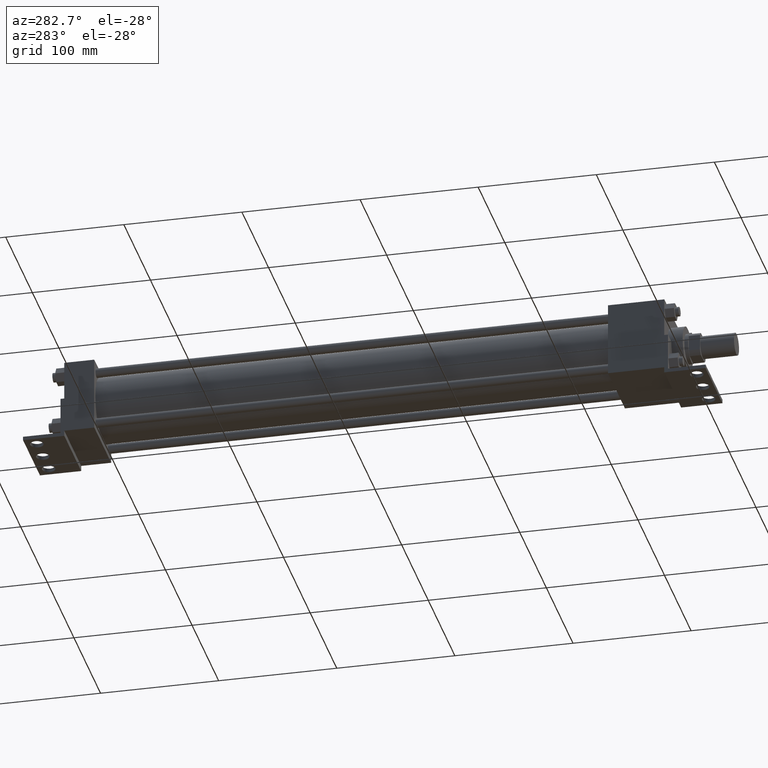
[diagram: clean part render]
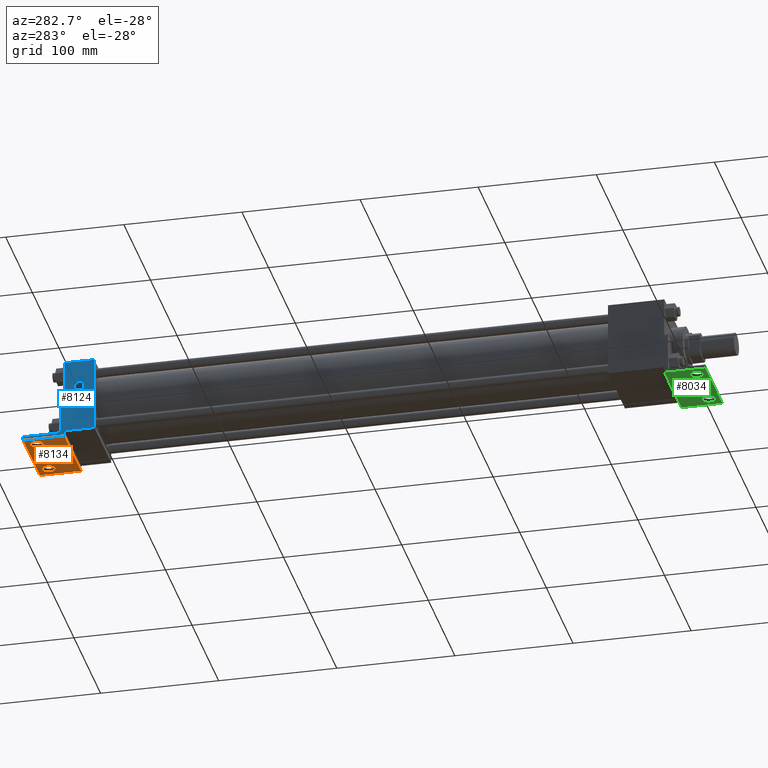
[diagram: same view with three faces highlighted in distinct colors, each labeled with its STEP entity id]
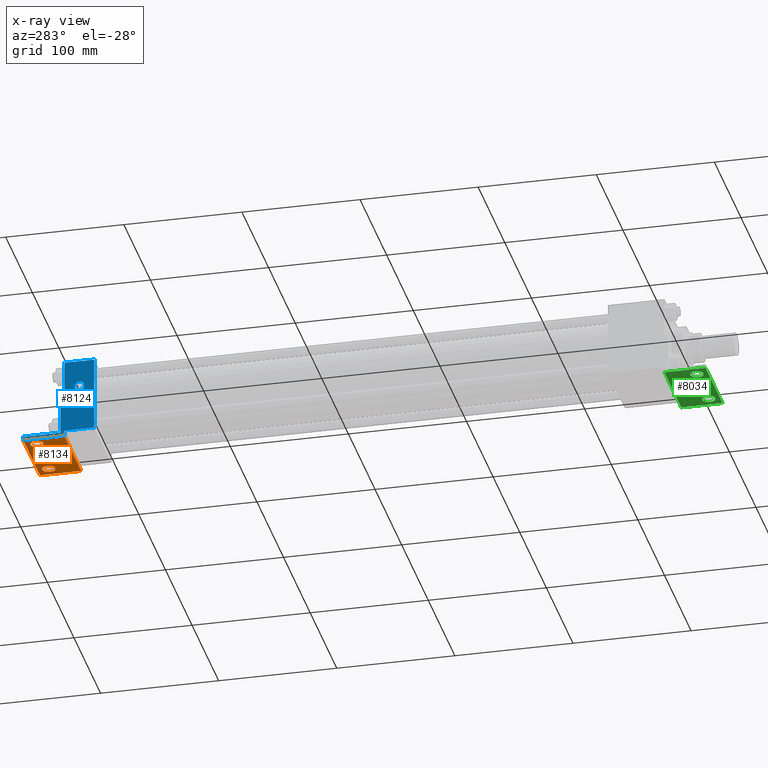
[diagram: x-ray of the same camera — body ghosted, the three highlighted faces saturated]
A machine part, auxiliary view with three faces highlighted in distinct colors.
The next image is the same camera in x-ray (body ghosted, the three faces saturated) — at least one of them is partly hidden behind the body in this view.
Their STEP definitions:

[orange] entity #8134 — the highlighted planar face has unit normal (0, 0, 1).
#3711=VERTEX_POINT('',#3712);
#3712=CARTESIAN_POINT('',(3.175000000E+001,5.334000000E+002,-3.651250000E+001));
#3713=EDGE_CURVE('',#3718,#3711,#3714,.T.);
#3714=LINE('',#3715,#3716);
#3715=CARTESIAN_POINT('',(3.175000000E+001,5.683250000E+002,-3.651250000E+001));
#3716=VECTOR('',#3717,1.0E+000);
#3717=DIRECTION('',(0.0E+000,-1.0E+000,0.0E+000));
#3718=VERTEX_POINT('',#3719);
#3719=CARTESIAN_POINT('',(3.175000000E+001,5.683250000E+002,-3.651250000E+001));
#3827=VERTEX_POINT('',#3828);
#3828=CARTESIAN_POINT('',(-3.175000000E+001,5.683250000E+002,-3.651250000E+001));
#3829=EDGE_CURVE('',#3827,#3834,#3830,.T.);
#3830=LINE('',#3831,#3832);
#3831=CARTESIAN_POINT('',(-3.175000000E+001,5.683250000E+002,-3.651250000E+001));
#3832=VECTOR('',#3833,1.0E+000);
#3833=DIRECTION('',(0.0E+000,-1.0E+000,0.0E+000));
#3834=VERTEX_POINT('',#3835);
#3835=CARTESIAN_POINT('',(-3.175000000E+001,5.334000000E+002,-3.651250000E+001));
#4338=EDGE_CURVE('',#3827,#3718,#4339,.T.);
#4339=LINE('',#4340,#4341);
#4340=CARTESIAN_POINT('',(-3.175000000E+001,5.683250000E+002,-3.651250000E+001));
#4341=VECTOR('',#4342,1.0E+000);
#4342=DIRECTION('',(1.0E+000,0.0E+000,0.0E+000));
#4353=FACE_OUTER_BOUND('',#4357,.T.);
#4354=FACE_BOUND('',#4358,.T.);
#4355=FACE_BOUND('',#4359,.T.);
#4356=FACE_BOUND('',#4360,.T.);
#4357=EDGE_LOOP('',(#4361));
#4358=EDGE_LOOP('',(#4370));
#4359=EDGE_LOOP('',(#4379));
#4360=EDGE_LOOP('',(#4388,#4389,#4390,#4391));
#4361=ORIENTED_EDGE('',*,*,#4362,.F.);
#4362=EDGE_CURVE('',#4368,#4368,#4363,.T.);
#4363=CIRCLE('',#4364,5.556250000E+000);
#4364=AXIS2_PLACEMENT_3D('',#4365,#4366,#4367);
#4365=CARTESIAN_POINT('',(0.000000000E+000,5.588000000E+002,-3.651250000E+001));
#4366=DIRECTION('',(0.0E+000,0.0E+000,-1.0E+000));
#4367=DIRECTION('',(1.0E+000,0.0E+000,0.0E+000));
#4368=VERTEX_POINT('',#4369);
#4369=CARTESIAN_POINT('',(-5.556250000E+000,5.588000000E+002,-3.651250000E+001));
#4370=ORIENTED_EDGE('',*,*,#4371,.F.);
#4371=EDGE_CURVE('',#4377,#4377,#4372,.T.);
#4372=CIRCLE('',#4373,5.556250000E+000);
#4373=AXIS2_PLACEMENT_3D('',#4374,#4375,#4376);
#4374=CARTESIAN_POINT('',(-2.222500000E+001,5.588000000E+002,-3.651250000E+001));
#4375=DIRECTION('',(0.0E+000,0.0E+000,-1.0E+000));
#4376=DIRECTION('',(1.0E+000,0.0E+000,0.0E+000));
#4377=VERTEX_POINT('',#4378);
#4378=CARTESIAN_POINT('',(-1.666875000E+001,5.588000000E+002,-3.651250000E+001));
#4379=ORIENTED_EDGE('',*,*,#4380,.F.);
#4380=EDGE_CURVE('',#4386,#4386,#4381,.T.);
#4381=CIRCLE('',#4382,5.556250000E+000);
#4382=AXIS2_PLACEMENT_3D('',#4383,#4384,#4385);
#4383=CARTESIAN_POINT('',(2.222500000E+001,5.588000000E+002,-3.651250000E+001));
#4384=DIRECTION('',(0.0E+000,0.0E+000,-1.0E+000));
#4385=DIRECTION('',(1.0E+000,0.0E+000,0.0E+000));
#4386=VERTEX_POINT('',#4387);
#4387=CARTESIAN_POINT('',(2.778125000E+001,5.588000000E+002,-3.651250000E+001));
#4388=ORIENTED_EDGE('',*,*,#3713,.T.);
#4389=ORIENTED_EDGE('',*,*,#4392,.F.);
#4390=ORIENTED_EDGE('',*,*,#3829,.F.);
#4391=ORIENTED_EDGE('',*,*,#4338,.T.);
#4392=EDGE_CURVE('',#3834,#3711,#4393,.T.);
#4393=LINE('',#4394,#4395);
#4394=CARTESIAN_POINT('',(-3.175000000E+001,5.334000000E+002,-3.651250000E+001));
#4395=VECTOR('',#4396,1.0E+000);
#4396=DIRECTION('',(1.0E+000,0.0E+000,0.0E+000));
#4397=PLANE('',#4398);
#4398=AXIS2_PLACEMENT_3D('',#4399,#4400,#4401);
#4399=CARTESIAN_POINT('',(-3.175000000E+001,5.683250000E+002,-3.651250000E+001));
#4400=DIRECTION('',(0.0E+000,0.0E+000,1.0E+000));
#4401=DIRECTION('',(-1.0E+000,0.0E+000,0.0E+000));
#8134=ADVANCED_FACE('',(#4353,#4354,#4355,#4356),#4397,.F.);

[blue] entity #8124 — the highlighted planar face has unit normal (-1, 0, 0).
#3416=VERTEX_POINT('',#3418);
#3418=CARTESIAN_POINT('',(-3.175000000E+001,5.080000000E+002,-3.175000000E+001));
#3432=VERTEX_POINT('',#3433);
#3433=CARTESIAN_POINT('',(-3.175000000E+001,5.080000000E+002,3.175000000E+001));
#3434=EDGE_CURVE('',#3432,#3416,#3435,.T.);
#3435=LINE('',#3436,#3437);
#3436=CARTESIAN_POINT('',(-3.175000000E+001,5.080000000E+002,3.175000000E+001));
#3437=VECTOR('',#3438,1.0E+000);
#3438=DIRECTION('',(0.0E+000,0.0E+000,-1.0E+000));
#3609=VERTEX_POINT('',#3611);
#3611=CARTESIAN_POINT('',(-3.175000000E+001,5.334000000E+002,-1.587500000E+000));
#3613=EDGE_CURVE('',#3618,#3609,#3614,.T.);
#3614=LINE('',#3615,#3616);
#3615=CARTESIAN_POINT('',(-3.175000000E+001,5.334000000E+002,3.175000000E+001));
#3616=VECTOR('',#3617,1.0E+000);
#3617=DIRECTION('',(0.0E+000,0.0E+000,-1.0E+000));
#3618=VERTEX_POINT('',#3619);
#3619=CARTESIAN_POINT('',(-3.175000000E+001,5.334000000E+002,3.175000000E+001));
#3661=EDGE_CURVE('',#3666,#3416,#3662,.T.);
#3662=LINE('',#3663,#3664);
#3663=CARTESIAN_POINT('',(-3.175000000E+001,5.334000000E+002,-3.175000000E+001));
#3664=VECTOR('',#3665,1.0E+000);
#3665=DIRECTION('',(0.0E+000,-1.0E+000,0.0E+000));
#3666=VERTEX_POINT('',#3667);
#3667=CARTESIAN_POINT('',(-3.175000000E+001,5.334000000E+002,-3.175000000E+001));
#3768=EDGE_CURVE('',#3618,#3432,#3769,.T.);
#3769=LINE('',#3770,#3771);
#3770=CARTESIAN_POINT('',(-3.175000000E+001,5.334000000E+002,3.175000000E+001));
#3771=VECTOR('',#3772,1.0E+000);
#3772=DIRECTION('',(0.0E+000,-1.0E+000,0.0E+000));
#3778=FACE_OUTER_BOUND('',#3780,.T.);
#3779=FACE_BOUND('',#3781,.T.);
#3780=EDGE_LOOP('',(#3782));
#3781=EDGE_LOOP('',(#3791,#3792,#3793,#3794,#3795,#3796,#3797,#3798,#3799,
   #3800));
#3782=ORIENTED_EDGE('',*,*,#3783,.T.);
#3783=EDGE_CURVE('',#3789,#3789,#3784,.T.);
#3784=CIRCLE('',#3785,3.968750000E+000);
#3785=AXIS2_PLACEMENT_3D('',#3786,#3787,#3788);
#3786=CARTESIAN_POINT('',(-3.175000000E+001,5.207000000E+002,8.732520000E+000));
#3787=DIRECTION('',(1.0E+000,0.0E+000,0.0E+000));
#3788=DIRECTION('',(0.0E+000,0.0E+000,1.0E+000));
#3789=VERTEX_POINT('',#3790);
#3790=CARTESIAN_POINT('',(-3.175000000E+001,5.207000000E+002,1.270127000E+001));
#3791=ORIENTED_EDGE('',*,*,#3613,.T.);
#3792=ORIENTED_EDGE('',*,*,#3801,.T.);
#3793=ORIENTED_EDGE('',*,*,#3808,.T.);
#3794=ORIENTED_EDGE('',*,*,#3815,.T.);
#3795=ORIENTED_EDGE('',*,*,#3822,.T.);
#3796=ORIENTED_EDGE('',*,*,#3829,.T.);
#3797=ORIENTED_EDGE('',*,*,#3836,.T.);
#3798=ORIENTED_EDGE('',*,*,#3661,.T.);
#3799=ORIENTED_EDGE('',*,*,#3434,.F.);
#3800=ORIENTED_EDGE('',*,*,#3768,.F.);
#3801=EDGE_CURVE('',#3609,#3806,#3802,.T.);
#3802=LINE('',#3803,#3804);
#3803=CARTESIAN_POINT('',(-3.175000000E+001,5.334000000E+002,-1.587500000E+000));
#3804=VECTOR('',#3805,1.0E+000);
#3805=DIRECTION('',(0.0E+000,1.0E+000,0.0E+000));
#3806=VERTEX_POINT('',#3807);
#3807=CARTESIAN_POINT('',(-3.175000000E+001,5.365750000E+002,-1.587500000E+000));
#3808=EDGE_CURVE('',#3806,#3813,#3809,.T.);
#3809=LINE('',#3810,#3811);
#3810=CARTESIAN_POINT('',(-3.175000000E+001,5.365750000E+002,-1.587500000E+000));
#3811=VECTOR('',#3812,1.0E+000);
#3812=DIRECTION('',(0.0E+000,0.0E+000,-1.0E+000));
#3813=VERTEX_POINT('',#3814);
#3814=CARTESIAN_POINT('',(-3.175000000E+001,5.365750000E+002,-3.333750000E+001));
#3815=EDGE_CURVE('',#3813,#3820,#3816,.T.);
#3816=LINE('',#3817,#3818);
#3817=CARTESIAN_POINT('',(-3.175000000E+001,5.365750000E+002,-3.333750000E+001));
#3818=VECTOR('',#3819,1.0E+000);
#3819=DIRECTION('',(0.0E+000,1.0E+000,0.0E+000));
#3820=VERTEX_POINT('',#3821);
#3821=CARTESIAN_POINT('',(-3.175000000E+001,5.683250000E+002,-3.333750000E+001));
#3822=EDGE_CURVE('',#3820,#3827,#3823,.T.);
#3823=LINE('',#3824,#3825);
#3824=CARTESIAN_POINT('',(-3.175000000E+001,5.683250000E+002,-3.651250000E+001));
#3825=VECTOR('',#3826,1.0E+000);
#3826=DIRECTION('',(0.0E+000,0.0E+000,-1.0E+000));
#3827=VERTEX_POINT('',#3828);
#3828=CARTESIAN_POINT('',(-3.175000000E+001,5.683250000E+002,-3.651250000E+001));
#3829=EDGE_CURVE('',#3827,#3834,#3830,.T.);
#3830=LINE('',#3831,#3832);
#3831=CARTESIAN_POINT('',(-3.175000000E+001,5.683250000E+002,-3.651250000E+001));
#3832=VECTOR('',#3833,1.0E+000);
#3833=DIRECTION('',(0.0E+000,-1.0E+000,0.0E+000));
#3834=VERTEX_POINT('',#3835);
#3835=CARTESIAN_POINT('',(-3.175000000E+001,5.334000000E+002,-3.651250000E+001));
#3836=EDGE_CURVE('',#3834,#3666,#3837,.T.);
#3837=LINE('',#3838,#3839);
#3838=CARTESIAN_POINT('',(-3.175000000E+001,5.334000000E+002,-3.651250000E+001));
#3839=VECTOR('',#3840,1.0E+000);
#3840=DIRECTION('',(0.0E+000,0.0E+000,1.0E+000));
#3841=PLANE('',#3842);
#3842=AXIS2_PLACEMENT_3D('',#3843,#3844,#3845);
#3843=CARTESIAN_POINT('',(-3.175000000E+001,5.334000000E+002,3.175000000E+001));
#3844=DIRECTION('',(-1.0E+000,0.0E+000,0.0E+000));
#3845=DIRECTION('',(0.0E+000,0.0E+000,1.0E+000));
#8124=ADVANCED_FACE('',(#3778,#3779),#3841,.T.);

[green] entity #8034 — the highlighted planar face has unit normal (0, 0, 1).
#648=VERTEX_POINT('',#649);
#649=CARTESIAN_POINT('',(3.175000000E+001,-9.525000000E+000,-3.651250000E+001));
#650=EDGE_CURVE('',#648,#655,#651,.T.);
#651=LINE('',#652,#653);
#652=CARTESIAN_POINT('',(3.175000000E+001,-9.525000000E+000,-3.651250000E+001));
#653=VECTOR('',#654,1.0E+000);
#654=DIRECTION('',(0.0E+000,1.0E+000,0.0E+000));
#655=VERTEX_POINT('',#656);
#656=CARTESIAN_POINT('',(3.175000000E+001,2.540000000E+001,-3.651250000E+001));
#741=VERTEX_POINT('',#742);
#742=CARTESIAN_POINT('',(-3.175000000E+001,2.540000000E+001,-3.651250000E+001));
#743=EDGE_CURVE('',#748,#741,#744,.T.);
#744=LINE('',#745,#746);
#745=CARTESIAN_POINT('',(-3.175000000E+001,-9.525000000E+000,-3.651250000E+001));
#746=VECTOR('',#747,1.0E+000);
#747=DIRECTION('',(0.0E+000,1.0E+000,0.0E+000));
#748=VERTEX_POINT('',#749);
#749=CARTESIAN_POINT('',(-3.175000000E+001,-9.525000000E+000,-3.651250000E+001));
#1035=EDGE_CURVE('',#655,#741,#1036,.T.);
#1036=LINE('',#1037,#1038);
#1037=CARTESIAN_POINT('',(3.175000000E+001,2.540000000E+001,-3.651250000E+001));
#1038=VECTOR('',#1039,1.0E+000);
#1039=DIRECTION('',(-1.0E+000,0.0E+000,0.0E+000));
#1074=EDGE_CURVE('',#648,#748,#1075,.T.);
#1075=LINE('',#1076,#1077);
#1076=CARTESIAN_POINT('',(3.175000000E+001,-9.525000000E+000,-3.651250000E+001));
#1077=VECTOR('',#1078,1.0E+000);
#1078=DIRECTION('',(-1.0E+000,0.0E+000,0.0E+000));
#1089=FACE_OUTER_BOUND('',#1093,.T.);
#1090=FACE_BOUND('',#1094,.T.);
#1091=FACE_BOUND('',#1095,.T.);
#1092=FACE_BOUND('',#1096,.T.);
#1093=EDGE_LOOP('',(#1097));
#1094=EDGE_LOOP('',(#1106));
#1095=EDGE_LOOP('',(#1115));
#1096=EDGE_LOOP('',(#1124,#1125,#1126,#1127));
#1097=ORIENTED_EDGE('',*,*,#1098,.F.);
#1098=EDGE_CURVE('',#1104,#1104,#1099,.T.);
#1099=CIRCLE('',#1100,5.556250000E+000);
#1100=AXIS2_PLACEMENT_3D('',#1101,#1102,#1103);
#1101=CARTESIAN_POINT('',(2.222500000E+001,0.000000000E+000,-3.651250000E+001));
#1102=DIRECTION('',(0.0E+000,0.0E+000,-1.0E+000));
#1103=DIRECTION('',(-1.0E+000,0.0E+000,0.0E+000));
#1104=VERTEX_POINT('',#1105);
#1105=CARTESIAN_POINT('',(1.666875000E+001,0.000000000E+000,-3.651250000E+001));
#1106=ORIENTED_EDGE('',*,*,#1107,.F.);
#1107=EDGE_CURVE('',#1113,#1113,#1108,.T.);
#1108=CIRCLE('',#1109,5.556250000E+000);
#1109=AXIS2_PLACEMENT_3D('',#1110,#1111,#1112);
#1110=CARTESIAN_POINT('',(-2.222500000E+001,0.000000000E+000,-3.651250000E+001));
#1111=DIRECTION('',(0.0E+000,0.0E+000,-1.0E+000));
#1112=DIRECTION('',(-1.0E+000,0.0E+000,0.0E+000));
#1113=VERTEX_POINT('',#1114);
#1114=CARTESIAN_POINT('',(-2.778125000E+001,0.000000000E+000,-3.651250000E+001));
#1115=ORIENTED_EDGE('',*,*,#1116,.F.);
#1116=EDGE_CURVE('',#1122,#1122,#1117,.T.);
#1117=CIRCLE('',#1118,5.556250000E+000);
#1118=AXIS2_PLACEMENT_3D('',#1119,#1120,#1121);
#1119=CARTESIAN_POINT('',(0.000000000E+000,0.000000000E+000,-3.651250000E+001));
#1120=DIRECTION('',(0.0E+000,0.0E+000,-1.0E+000));
#1121=DIRECTION('',(-1.0E+000,0.0E+000,0.0E+000));
#1122=VERTEX_POINT('',#1123);
#1123=CARTESIAN_POINT('',(-5.556250000E+000,0.000000000E+000,-3.651250000E+001));
#1124=ORIENTED_EDGE('',*,*,#743,.T.);
#1125=ORIENTED_EDGE('',*,*,#1035,.F.);
#1126=ORIENTED_EDGE('',*,*,#650,.F.);
#1127=ORIENTED_EDGE('',*,*,#1074,.T.);
#1128=PLANE('',#1129);
#1129=AXIS2_PLACEMENT_3D('',#1130,#1131,#1132);
#1130=CARTESIAN_POINT('',(3.175000000E+001,-9.525000000E+000,-3.651250000E+001));
#1131=DIRECTION('',(0.0E+000,0.0E+000,1.0E+000));
#1132=DIRECTION('',(1.0E+000,0.0E+000,0.0E+000));
#8034=ADVANCED_FACE('',(#1089,#1090,#1091,#1092),#1128,.F.);